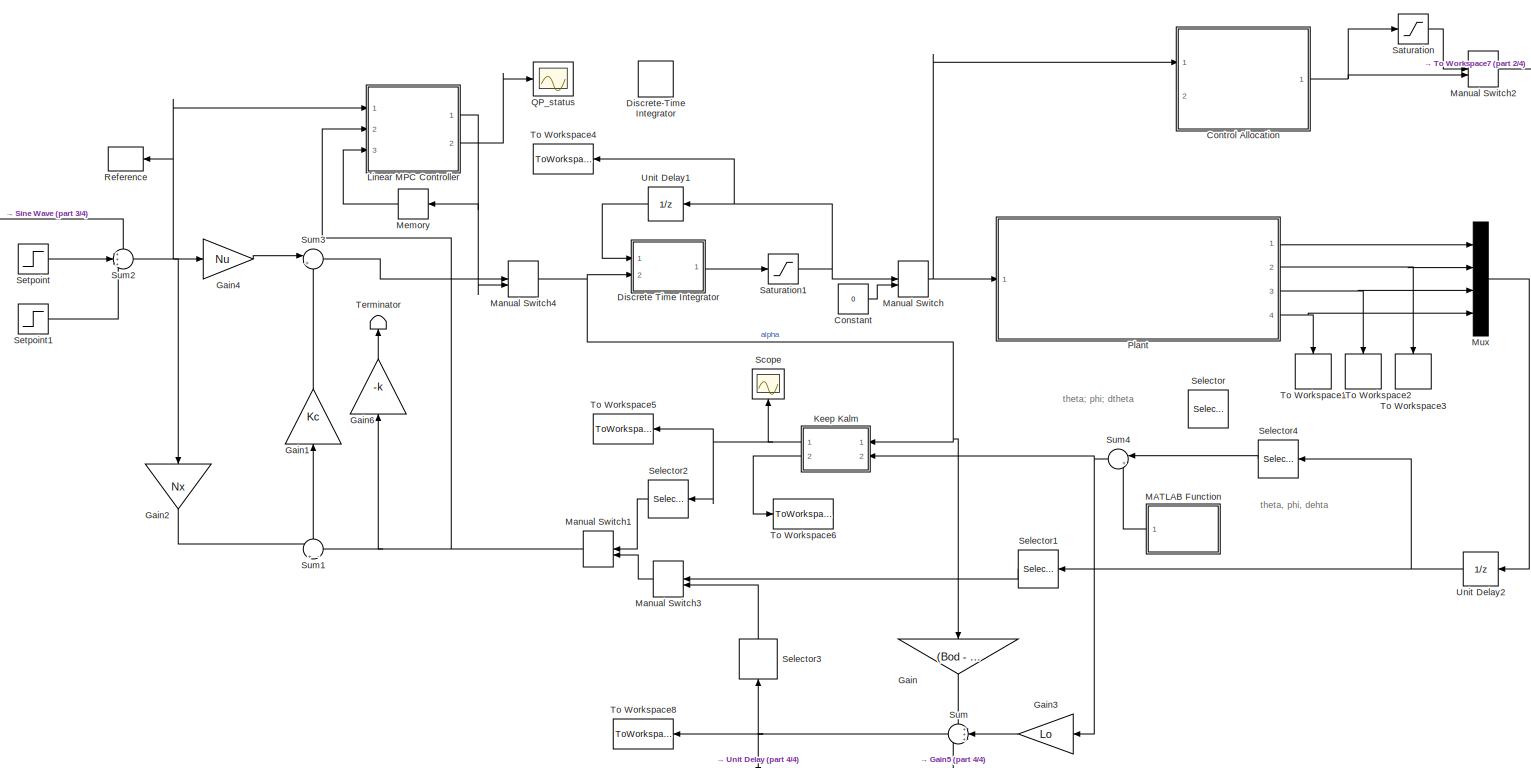
[diagram: root canvas - part 1/4, most of the canvas]
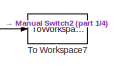
[diagram: root canvas - part 2/4, top right region]
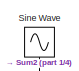
[diagram: root canvas - part 3/4, top left region]
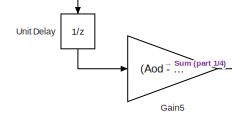
[diagram: root canvas - part 4/4, bottom center region]
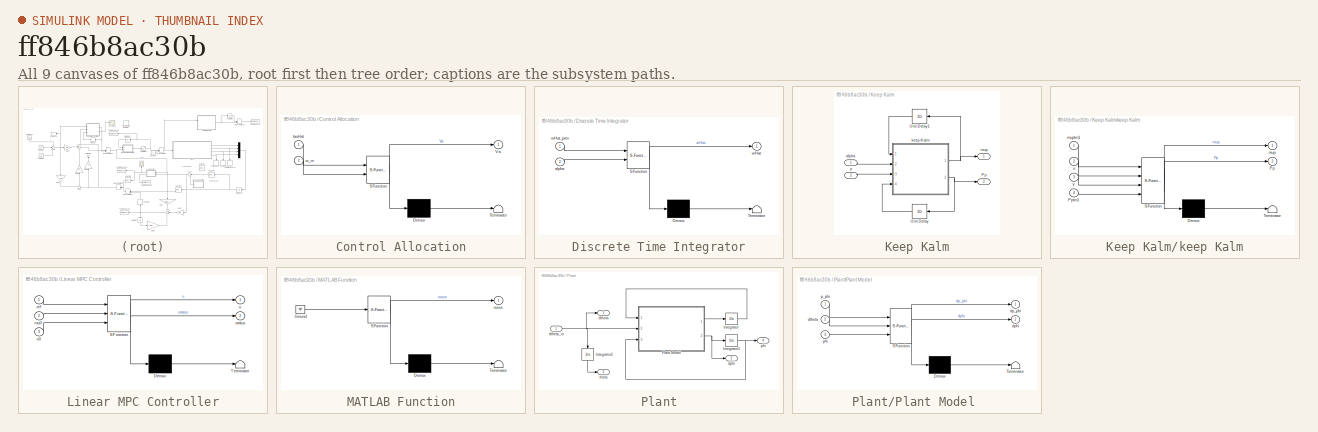
[diagram: thumbnail index - all 9 canvases of the model, root first then tree order]
MODEL slx_ff846b8ac30b
KIND model
CONFIG AbsTol = auto
CONFIG EnableMultiTasking = off
CONFIG FixedStep = T
CONFIG MaxStep = auto
CONFIG MinStep = auto
CONFIG RelTol = 1e-3
CONFIG SampleTimeConstraint = Unconstrained
CONFIG Solver = FixedStepAuto
CONFIG SolverName = FixedStepAuto
CONFIG StartTime = 0.0
CONFIG StopTime = tsim
BLOCK [Constant] Constant
  Value = 0
BLOCK [SubSystem] Control Allocation
  Commented = on
  ErrorFcn = Stateflow.Translate.translate
  PermitHierarchicalResolution = ExplicitOnly
  Ports = [2, 1]
  RequestExecContextInheritance = off
  SFBlockType = MATLAB Function
  TreatAsAtomicUnit = on
BLOCK [Demux] Control Allocation/ Demux 
  Outputs = 1
  Ports = [1, 1]
BLOCK [S-Function] Control Allocation/ SFunction 
  EnableBusSupport = on
  FunctionName = sf_sfun
  Parameters = B1,B2,B3,B4,B5,B6,Kw,N,Ra,a1,a2,a3,a4,a5,a6,p1,p2,p3
  PortCounts = [2 2]
  Ports = [2, 2]
  SFcnIsStateOwnerBlock = off
  SFunctionDeploymentMode = off
  Tag = Stateflow S-Function Hamiltonian_model 3
BLOCK [Terminator] Control Allocation/ Terminator 
BLOCK [Outport] Control Allocation/Va
  IconDisplay = Port number
BLOCK [Inport] Control Allocation/tauHat
  IconDisplay = Port number
BLOCK [Inport] Control Allocation/w_m
  IconDisplay = Port number
  Port = 2
BLOCK [SubSystem] Discrete Time Integrator
  ErrorFcn = Stateflow.Translate.translate
  PermitHierarchicalResolution = ExplicitOnly
  Ports = [2, 1]
  RequestExecContextInheritance = off
  SFBlockType = MATLAB Function
  TreatAsAtomicUnit = on
BLOCK [Demux] Discrete Time Integrator/ Demux 
  Outputs = 1
  Ports = [1, 1]
BLOCK [S-Function] Discrete Time Integrator/ SFunction 
  EnableBusSupport = on
  FunctionName = sf_sfun
  Parameters = T
  PortCounts = [2 2]
  Ports = [2, 2]
  SFcnIsStateOwnerBlock = off
  SFunctionDeploymentMode = off
  Tag = Stateflow S-Function Hamiltonian_model 5
BLOCK [Terminator] Discrete Time Integrator/ Terminator 
BLOCK [Inport] Discrete Time Integrator/alpha
  IconDisplay = Port number
  Port = 2
BLOCK [Outport] Discrete Time Integrator/wHat
  IconDisplay = Port number
BLOCK [Inport] Discrete Time Integrator/wHat_prev
  IconDisplay = Port number
BLOCK [DiscreteIntegrator] Discrete-Time Integrator
  Commented = on
  ICPrevOutput = DiscIntNeverNeededParam
  ICPrevScaledInput = DiscIntNeverNeededParam
  InitialConditionSetting = Auto
  Ports = [1, 1]
  SampleTime = -1
BLOCK [Gain] Gain
  Commented = on
  Gain = (Bod - Lo*Dm)
  Multiplication = Matrix(K*u)
  OutDataTypeStr = Inherit: Inherit via internal rule
  ParamDataTypeStr = Inherit: Inherit via internal rule
  SaturateOnIntegerOverflow = off
BLOCK [Gain] Gain1
  Gain = Kc
  Multiplication = Matrix(K*u)
  OutDataTypeStr = Inherit: Inherit via internal rule
  ParamDataTypeStr = Inherit: Inherit via internal rule
  SaturateOnIntegerOverflow = off
BLOCK [Gain] Gain2
  Gain = Nx
  Multiplication = Matrix(K*u)
  OutDataTypeStr = Inherit: Inherit via internal rule
  ParamDataTypeStr = Inherit: Inherit via internal rule
  SaturateOnIntegerOverflow = off
BLOCK [Gain] Gain3
  Commented = on
  Gain = Lo
  Multiplication = Matrix(K*u)
  OutDataTypeStr = Inherit: Inherit via internal rule
  ParamDataTypeStr = Inherit: Inherit via internal rule
  SaturateOnIntegerOverflow = off
BLOCK [Gain] Gain4
  Gain = Nu
  Multiplication = Matrix(K*u)
  OutDataTypeStr = Inherit: Inherit via internal rule
  ParamDataTypeStr = Inherit: Inherit via internal rule
  SaturateOnIntegerOverflow = off
BLOCK [Gain] Gain5
  Commented = on
  Gain = (Aod - Lo*Cm)
  Multiplication = Matrix(K*u)
  OutDataTypeStr = Inherit: Inherit via internal rule
  ParamDataTypeStr = Inherit: Inherit via internal rule
  SaturateOnIntegerOverflow = off
BLOCK [Gain] Gain6
  Gain = -k
  Multiplication = Matrix(K*u)
  OutDataTypeStr = Inherit: Inherit via internal rule
  ParamDataTypeStr = Inherit: Inherit via internal rule
  SaturateOnIntegerOverflow = off
BLOCK [SubSystem] Keep Kalm
  Ports = [2, 2]
  RequestExecContextInheritance = off
BLOCK [Outport] Keep Kalm/Pp
  IconDisplay = Port number
  Port = 2
BLOCK [UnitDelay] Keep Kalm/Unit Delay
  InitialCondition = Pp_init
  InputProcessing = Elements as channels (sample based)
  SampleTime = -1
BLOCK [UnitDelay] Keep Kalm/Unit Delay1
  InitialCondition = mup_init
  InputProcessing = Elements as channels (sample based)
  SampleTime = -1
BLOCK [Inport] Keep Kalm/alpha
  IconDisplay = Port number
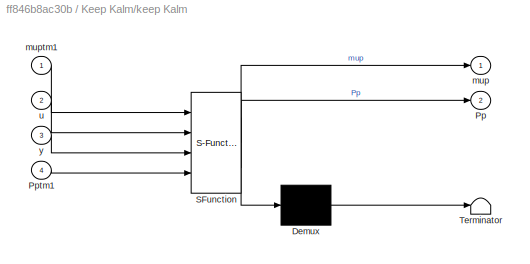
BLOCK [SubSystem] Keep Kalm/keep Kalm
  ErrorFcn = Stateflow.Translate.translate
  PermitHierarchicalResolution = ExplicitOnly
  Ports = [4, 2]
  RequestExecContextInheritance = off
  SFBlockType = MATLAB Function
  TreatAsAtomicUnit = on
BLOCK [Demux] Keep Kalm/keep Kalm/ Demux 
  Outputs = 1
  Ports = [1, 1]
BLOCK [S-Function] Keep Kalm/keep Kalm/ SFunction 
  EnableBusSupport = on
  FunctionName = sf_sfun
  Parameters = Aod,Bod,Cm,Dm,Qo,Ro
  PortCounts = [4 3]
  Ports = [4, 3]
  SFcnIsStateOwnerBlock = off
  SFunctionDeploymentMode = off
  Tag = Stateflow S-Function Hamiltonian_model 1
BLOCK [Terminator] Keep Kalm/keep Kalm/ Terminator 
BLOCK [Outport] Keep Kalm/keep Kalm/Pp
  IconDisplay = Port number
  Port = 2
BLOCK [Inport] Keep Kalm/keep Kalm/Pptm1
  IconDisplay = Port number
  Port = 4
BLOCK [Outport] Keep Kalm/keep Kalm/mup
  IconDisplay = Port number
BLOCK [Inport] Keep Kalm/keep Kalm/muptm1
  IconDisplay = Port number
BLOCK [Inport] Keep Kalm/keep Kalm/u
  IconDisplay = Port number
  Port = 2
BLOCK [Inport] Keep Kalm/keep Kalm/y
  IconDisplay = Port number
  Port = 3
BLOCK [Outport] Keep Kalm/mup
  IconDisplay = Port number
BLOCK [Inport] Keep Kalm/y
  IconDisplay = Port number
  Port = 2
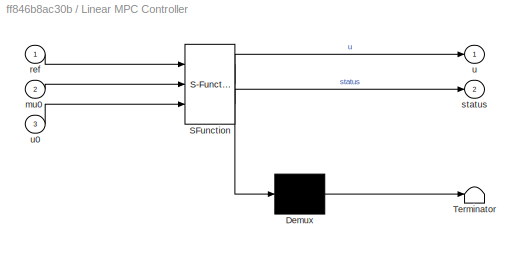
BLOCK [SubSystem] Linear MPC Controller
  ErrorFcn = Stateflow.Translate.translate
  PermitHierarchicalResolution = ExplicitOnly
  Ports = [3, 2]
  RequestExecContextInheritance = off
  SFBlockType = MATLAB Function
  SystemSampleTime = T
  TreatAsAtomicUnit = on
BLOCK [Demux] Linear MPC Controller/ Demux 
  Outputs = 1
  Ports = [1, 1]
BLOCK [S-Function] Linear MPC Controller/ SFunction 
  EnableBusSupport = on
  FunctionName = sf_sfun
  Parameters = Acd,Aineq,Bcd,Gamma,Linv,bineq,n_in,opt
  PortCounts = [3 3]
  Ports = [3, 3]
  SFcnIsStateOwnerBlock = off
  SFunctionDeploymentMode = off
  Tag = Stateflow S-Function Hamiltonian_model 6
BLOCK [Terminator] Linear MPC Controller/ Terminator 
BLOCK [Inport] Linear MPC Controller/mu0
  IconDisplay = Port number
  Port = 2
BLOCK [Inport] Linear MPC Controller/ref
  IconDisplay = Port number
BLOCK [Outport] Linear MPC Controller/status
  IconDisplay = Port number
  Port = 2
BLOCK [Outport] Linear MPC Controller/u
  IconDisplay = Port number
BLOCK [Inport] Linear MPC Controller/u0
  IconDisplay = Port number
  Port = 3
BLOCK [SubSystem] MATLAB Function
  ErrorFcn = Stateflow.Translate.translate
  PermitHierarchicalResolution = ExplicitOnly
  Ports = [0, 1]
  RequestExecContextInheritance = off
  SFBlockType = MATLAB Function
  TreatAsAtomicUnit = on
BLOCK [Demux] MATLAB Function/ Demux 
  Outputs = 1
  Ports = [1, 1]
BLOCK [Ground] MATLAB Function/ Ground 
BLOCK [S-Function] MATLAB Function/ SFunction 
  EnableBusSupport = on
  FunctionName = sf_sfun
  PortCounts = [1 2]
  Ports = [1, 2]
  SFcnIsStateOwnerBlock = off
  SFunctionDeploymentMode = off
  Tag = Stateflow S-Function Hamiltonian_model 4
BLOCK [Terminator] MATLAB Function/ Terminator 
BLOCK [Outport] MATLAB Function/noise
  IconDisplay = Port number
BLOCK [ManualSwitch] Manual Switch
BLOCK [ManualSwitch] Manual Switch1
  CurrentSetting = 0
BLOCK [ManualSwitch] Manual Switch2
  Commented = on
  CurrentSetting = 0
BLOCK [ManualSwitch] Manual Switch3
BLOCK [ManualSwitch] Manual Switch4
BLOCK [Memory] Memory
  InheritSampleTime = on
  InitialCondition = zeros(n_out,1)
BLOCK [Mux] Mux
  DisplayOption = bar
  Ports = [4, 1]
BLOCK [SubSystem] Plant
  Ports = [1, 4]
  RequestExecContextInheritance = off
BLOCK [Integrator] Plant/Integrator
  Ports = [1, 1]
BLOCK [Integrator] Plant/Integrator1
  InitialCondition = phi0
  Ports = [1, 1]
BLOCK [Integrator] Plant/Integrator2
  InitialCondition = theta0
  Ports = [1, 1]
BLOCK [SubSystem] Plant/Plant Model 
  ErrorFcn = Stateflow.Translate.translate
  PermitHierarchicalResolution = ExplicitOnly
  Ports = [3, 2]
  RequestExecContextInheritance = off
  SFBlockType = MATLAB Function
  TreatAsAtomicUnit = on
BLOCK [Demux] Plant/Plant Model / Demux 
  Outputs = 1
  Ports = [1, 1]
BLOCK [S-Function] Plant/Plant Model / SFunction 
  EnableBusSupport = on
  FunctionName = sf_sfun
  Parameters = Jo,g,mo,rh,ro
  PortCounts = [3 3]
  Ports = [3, 3]
  SFcnIsStateOwnerBlock = off
  SFunctionDeploymentMode = off
  Tag = Stateflow S-Function Hamiltonian_model 2
BLOCK [Terminator] Plant/Plant Model / Terminator 
BLOCK [Outport] Plant/Plant Model /dp_phi
  IconDisplay = Port number
BLOCK [Outport] Plant/Plant Model /dphi
  IconDisplay = Port number
  Port = 2
BLOCK [Inport] Plant/Plant Model /dtheta
  IconDisplay = Port number
  Port = 2
BLOCK [Inport] Plant/Plant Model /p_phi
  IconDisplay = Port number
BLOCK [Inport] Plant/Plant Model /phi
  IconDisplay = Port number
  Port = 3
BLOCK [Outport] Plant/dphi
  IconDisplay = Port number
  Port = 2
BLOCK [Outport] Plant/dtheta 
  IconDisplay = Port number
BLOCK [Inport] Plant/dtheta_in
  IconDisplay = Port number
BLOCK [Outport] Plant/phi
  IconDisplay = Port number
  Port = 4
BLOCK [Outport] Plant/theta
  IconDisplay = Port number
  Port = 3
BLOCK [Scope] QP_status
  Floating = off
  NumInputPorts = 1
  Ports = [1]
  ScopeSpecificationString = Simulink.scopes.TimeScopeBlockCfg('CurrentConfiguration', extmgr.ConfigurationSet(extmgr.Configuration('Core','General UI',true),extmgr.Configuration('Core','Source UI',true),extmgr.Configuration('Sources','WiredSimulink',true,'DataLoggingVariableName','ScopeData1'),extmgr.Configuration('Visuals','Time Domain',true,'SerializedDisplays',{struct('MinYLimReal','0.9','MaxYLimReal','1.1','YLabelReal','...<+1378ch>
BLOCK [ToWorkspace] Reference
  MaxDataPoints = inf
  Ports = [1]
  SampleTime = -1
  Save2DSignal = 3-D array (concatenate along third dimension)
  SaveFormat = Structure With Time
  VariableName = ref
BLOCK [Saturate] Saturation
  Commented = on
  InputPortMap = u0
  LowerLimit = -6
  Ports = [1, 1]
  UpperLimit = 6
BLOCK [Saturate] Saturation1
  InputPortMap = u0
  LowerLimit = -10
  Ports = [1, 1]
  UpperLimit = 10
BLOCK [Scope] Scope
  Floating = off
  NumInputPorts = 1
  Ports = [1]
  ScopeSpecificationString = Simulink.scopes.TimeScopeBlockCfg('CurrentConfiguration', extmgr.ConfigurationSet(extmgr.Configuration('Core','General UI',true),extmgr.Configuration('Core','Source UI',true),extmgr.Configuration('Sources','WiredSimulink',true),extmgr.Configuration('Visuals','Time Domain',true,'SerializedDisplays',{struct('MinYLimReal','-2.26618','MaxYLimReal','19.53162','YLabelReal','','MinYLimMag','0.00000','Max...<+1465ch>
BLOCK [Selector] Selector
  Commented = on
  IndexOptions = Index vector (dialog)
  Indices = [3, 4, 1]
  InputPortWidth = 4
  OutputSizes = 1
  Ports = [1, 1]
BLOCK [Selector] Selector1
  IndexOptions = Index vector (dialog)
  Indices = [1 2 4]
  InputPortWidth = 4
  OutputSizes = 1
  Ports = [1, 1]
BLOCK [Selector] Selector2
  IndexOptions = Index vector (dialog)
  Indices = [1 2 4]
  InputPortWidth = 4
  OutputSizes = 1
  Ports = [1, 1]
BLOCK [Selector] Selector3
  Commented = on
  IndexOptions = Index vector (dialog)
  Indices = [1 2 4]
  InputPortWidth = 4
  OutputSizes = 1
  Ports = [1, 1]
BLOCK [Selector] Selector4
  IndexOptions = Index vector (dialog)
  Indices = [1 3 4]
  InputPortWidth = 4
  OutputSizes = 1
  Ports = [1, 1]
BLOCK [Step] Setpoint
  After = 2*pi
  Commented = on
  SampleTime = 0
  Time = 3
BLOCK [Step] Setpoint1
  After = -pi
  Commented = on
  SampleTime = 0
  Time = 6
BLOCK [Sin] Sine Wave
  Amplitude = 3
  Commented = on
  Ports = [0, 1]
  SampleTime = 0
BLOCK [Sum] Sum
  Commented = on
  IconShape = round
  InputSameDT = off
  Inputs = +++
  OutDataTypeStr = Inherit: Inherit via internal rule
  Ports = [3, 1]
  SaturateOnIntegerOverflow = off
BLOCK [Sum] Sum1
  IconShape = round
  InputSameDT = off
  Inputs = +|-
  OutDataTypeStr = Inherit: Inherit via internal rule
  Ports = [2, 1]
  SaturateOnIntegerOverflow = off
BLOCK [Sum] Sum2
  IconShape = round
  InputSameDT = off
  Inputs = +++
  OutDataTypeStr = Inherit: Inherit via internal rule
  Ports = [3, 1]
  SaturateOnIntegerOverflow = off
BLOCK [Sum] Sum3
  IconShape = round
  InputSameDT = off
  Inputs = |++
  OutDataTypeStr = Inherit: Inherit via internal rule
  Ports = [2, 1]
  SaturateOnIntegerOverflow = off
BLOCK [Sum] Sum4
  IconShape = round
  InputSameDT = off
  Inputs = |++
  OutDataTypeStr = Inherit: Inherit via internal rule
  Ports = [2, 1]
  SaturateOnIntegerOverflow = off
BLOCK [Terminator] Terminator
BLOCK [ToWorkspace] To Workspace1
  FixptAsFi = on
  MaxDataPoints = inf
  Ports = [1]
  SampleTime = -1
  Save2DSignal = 3-D array (concatenate along third dimension)
  SaveFormat = Structure With Time
  VariableName = phi
BLOCK [ToWorkspace] To Workspace2
  FixptAsFi = on
  MaxDataPoints = inf
  Ports = [1]
  SampleTime = -1
  Save2DSignal = 3-D array (concatenate along third dimension)
  SaveFormat = Structure With Time
  VariableName = theta
BLOCK [ToWorkspace] To Workspace3
  FixptAsFi = on
  MaxDataPoints = inf
  Ports = [1]
  SampleTime = -1
  Save2DSignal = 3-D array (concatenate along third dimension)
  SaveFormat = Structure With Time
  VariableName = dphi
BLOCK [ToWorkspace] To Workspace4
  FixptAsFi = on
  MaxDataPoints = inf
  Ports = [1]
  SampleTime = -1
  Save2DSignal = 3-D array (concatenate along third dimension)
  SaveFormat = Structure With Time
  VariableName = dtheta_dem
BLOCK [ToWorkspace] To Workspace5
  FixptAsFi = on
  MaxDataPoints = inf
  Ports = [1]
  SampleTime = -1
  Save2DSignal = 3-D array (concatenate along third dimension)
  SaveFormat = Structure With Time
  VariableName = mup
BLOCK [ToWorkspace] To Workspace6
  FixptAsFi = on
  MaxDataPoints = inf
  Ports = [1]
  SampleTime = -1
  Save2DSignal = 3-D array (concatenate along third dimension)
  SaveFormat = Structure With Time
  VariableName = Pp
BLOCK [ToWorkspace] To Workspace7
  Commented = on
  FixptAsFi = on
  MaxDataPoints = inf
  Ports = [1]
  SampleTime = -1
  Save2DSignal = 3-D array (concatenate along third dimension)
  SaveFormat = Structure With Time
  VariableName = Va
BLOCK [ToWorkspace] To Workspace8
  Commented = on
  FixptAsFi = on
  MaxDataPoints = inf
  Ports = [1]
  SampleTime = -1
  Save2DSignal = 3-D array (concatenate along third dimension)
  SaveFormat = Structure With Time
  VariableName = mup_L
BLOCK [UnitDelay] Unit Delay
  Commented = on
  InitialCondition = mup_init
  InputProcessing = Elements as channels (sample based)
  SampleTime = T
BLOCK [UnitDelay] Unit Delay1
  InputProcessing = Elements as channels (sample based)
  SampleTime = -1
BLOCK [UnitDelay] Unit Delay2
  InitialCondition = mup_init
  InputProcessing = Elements as channels (sample based)
  SampleTime = -1
ANNOTATION (root): theta, phi, dehta
ANNOTATION (root): theta; phi; dtheta
LINE Constant:1 -> Manual Switch:2
NET Control Allocation:1 -> Manual Switch2:2, Saturation:1
LINE Discrete Time Integrator:1 -> Saturation1:1
LINE Gain1:1 -> Sum3:2
LINE Gain2:1 -> Sum1:1
LINE Gain3:1 -> Sum:2
LINE Gain4:1 -> Sum3:1
LINE Gain5:1 -> Sum:3
LINE Gain6:1 -> Terminator:1
LINE Gain:1 -> Sum:1
LINE Keep Kalm/Unit Delay1:1 -> Keep Kalm/keep Kalm:1
LINE Keep Kalm/Unit Delay:1 -> Keep Kalm/keep Kalm:4
LINE Keep Kalm/alpha:1 -> Keep Kalm/keep Kalm:2
NET Keep Kalm/keep Kalm:1 -> Keep Kalm/Unit Delay1:1, Keep Kalm/mup:1
NET Keep Kalm/keep Kalm:2 -> Keep Kalm/Pp:1, Keep Kalm/Unit Delay:1
LINE Keep Kalm/y:1 -> Keep Kalm/keep Kalm:3
NET Keep Kalm:1 -> Scope:1, Selector2:1, To Workspace5:1
LINE Keep Kalm:2 -> To Workspace6:1
NET Linear MPC Controller:1 -> Manual Switch4:2, Memory:1
LINE Linear MPC Controller:2 -> QP_status:1
LINE MATLAB Function:1 -> Sum4:2
NET Manual Switch1:1 -> Gain6:1, Linear MPC Controller:2, Sum1:2
LINE Manual Switch2:1 -> To Workspace7:1
LINE Manual Switch3:1 -> Manual Switch1:2
NET Manual Switch4:1 -> Discrete Time Integrator:2, Gain:1, Keep Kalm:1
NET Manual Switch:1 -> Control Allocation:1, Plant:1
LINE Memory:1 -> Linear MPC Controller:3
LINE Mux:1 -> Unit Delay2:1
NET Plant/Integrator1:1 -> Plant/Plant Model :3, Plant/phi:1
LINE Plant/Integrator2:1 -> Plant/theta:1
LINE Plant/Integrator:1 -> Plant/Plant Model :1
LINE Plant/Plant Model :1 -> Plant/Integrator:1
NET Plant/Plant Model :2 -> Plant/Integrator1:1, Plant/dphi:1
NET Plant/dtheta_in:1 -> Plant/Integrator2:1, Plant/Plant Model :2, Plant/dtheta :1
LINE Plant:1 -> Mux:1
NET Plant:2 -> Mux:2, To Workspace3:1
NET Plant:3 -> Mux:3, To Workspace2:1
NET Plant:4 -> Mux:4, To Workspace1:1
NET Saturation1:1 -> Manual Switch:1, To Workspace4:1, Unit Delay1:1
LINE Saturation:1 -> Manual Switch2:1
LINE Selector1:1 -> Manual Switch3:1
LINE Selector2:1 -> Manual Switch1:1
LINE Selector3:1 -> Manual Switch3:2
LINE Selector4:1 -> Sum4:1
LINE Setpoint1:1 -> Sum2:3
LINE Setpoint:1 -> Sum2:2
LINE Sine Wave:1 -> Sum2:1
LINE Sum1:1 -> Gain1:1
NET Sum2:1 -> Gain2:1, Gain4:1, Linear MPC Controller:1, Reference:1
LINE Sum3:1 -> Manual Switch4:1
NET Sum4:1 -> Gain3:1, Keep Kalm:2
NET Sum:1 -> Selector3:1, To Workspace8:1, Unit Delay:1
LINE Unit Delay1:1 -> Discrete Time Integrator:1
NET Unit Delay2:1 -> Selector1:1, Selector4:1
LINE Unit Delay:1 -> Gain5:1
note: NET lines group one-source signal fan-out (src -> all destinations, sorted); 1:1 wires keep LINE
CHART Keep Kalm/keep Kalm states=1 transitions=1
  STATE_LABEL 'eML_blk_kernel()'
  STATE_LABEL "SCRIPT:\nfunction [mup, Pp] = fcn(muptm1, u, y, Pptm1, Cm, Bod, Qo, Ro, Aod, Dm)\n% % Update with new measurement\n% muf = muptm1 + Pptm1*Cm'*((Cm*Pptm1*Cm' + Ro)\\(y - Cm*muptm1 - Dm*u));\n% Pf = Pptm1 - Pptm1*Cm'*((Cm*Pptm1*Cm' + Ro)\\(Cm*Pptm1));\n% \n% % Predict Forward\n% mup = Aod*muf + Bod*u;\n% Pp = Aod*Pf*Aod' + Qo;\n\nn = length(Aod);\n\n% Optimal Kalman Gain\nKk = Pptm1*Cm.'/(Cm*Pptm1*Cm.' + Ro);\n\n% C...<+588ch>"
CHART Plant/Plant Model
 states=1 transitions=1
  STATE_LABEL 'eML_blk_kernel()'
  STATE_LABEL 'SCRIPT:\nfunction [dp_phi, dphi] = fcn(p_phi, dtheta, phi, mo, g, rh, ro, Jo)\n\ndp_phi = mo*g*(rh+ro)*sin(phi);\n\ndphi = (p_phi + Jo*((rh^2)/(ro^2))*dtheta)/(mo*((rh+ro)^2) + Jo*((rh^2)/(ro^2)));\n\n\n'
CHART Control Allocation states=1 transitions=1
  STATE_LABEL 'eML_blk_kernel()'
  STATE_LABEL 'SCRIPT:\nfunction Va = controlAllocation(tauHat, w_m, Ra, Kw, N, a1, a2, a3, B1, B2,...\n    B3, a4, a5, a6, B4, B5, B6, p1, p2, p3)\n% Correct velocity\nw_m = w_m.*N;\n\n% Heaviside functions\nheavi_p =@(x) 1./(1 + exp(-2.*50.*x));\nheavi_m =@(x) 1./(1 + exp(-2.*50.*-x));\n\n% Friction function\ntauF = (a1.*(tanh(B1.*w_m) - tanh(B2.*w_m)) + a2.*tanh(B3.*w_m) + a3.*w_m).*heavi_p(w_m)...\n                + (a4...<+199ch>'
CHART MATLAB Function states=1 transitions=1
  STATE_LABEL 'eML_blk_kernel()'
  STATE_LABEL 'SCRIPT:\nfunction noise = noisyboi()\nnoise = 0.00000001.*randn(3,1);\n\n'
CHART Discrete Time Integrator states=1 transitions=1
  STATE_LABEL 'eML_blk_kernel()'
  STATE_LABEL 'SCRIPT:\nfunction wHat = fcn(wHat_prev, alpha, T)\nwHat = wHat_prev + T*alpha;\n'
CHART Linear MPC Controller states=1 transitions=1
  STATE_LABEL 'eML_blk_kernel()'
  STATE_LABEL 'SCRIPT:\nfunction [u, status] = MPC(ref, mu0, Linv, opt, n_in, u0, Gamma, Acd, Bcd, Aineq, bineq)\n%#codegen\n\n% Predict state at next time step\nmu1 = Acd*mu0 + Bcd*u0;\n\n% Compute linear coefficient of QP\nkk = [mu1; u0; ref];\ng = Gamma*kk;\n\niA0 = false(size(Aineq,1),1);   % Initial active constraints\n\n% The KWIK algorithm defines inequality constraints as Ax >= b rather than \n% Ax <= b, as in the qua...<+144ch>'
